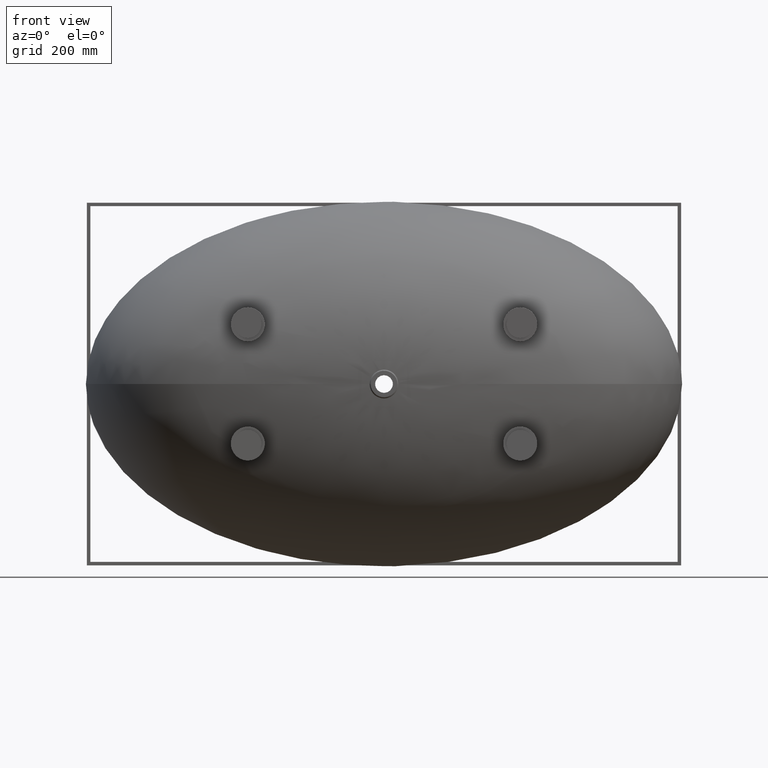
[diagram: clean part render]
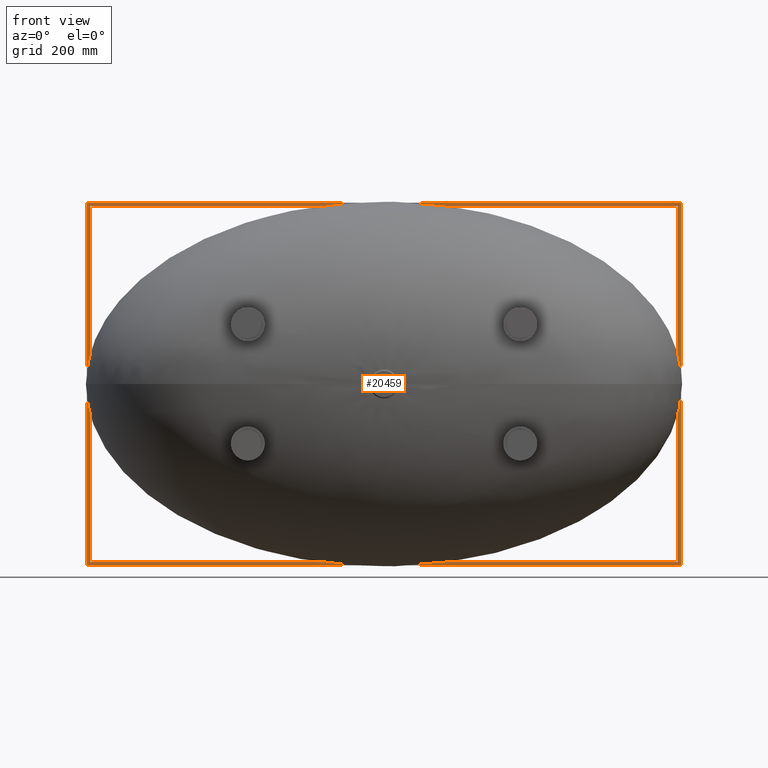
[diagram: same view with one face highlighted and labeled with its STEP entity id]
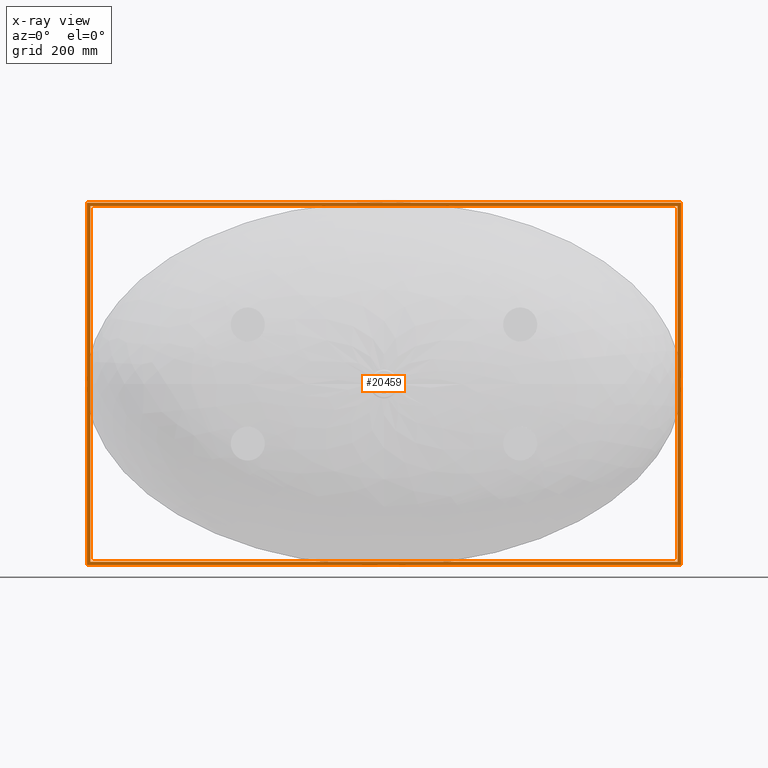
[diagram: x-ray of the same camera — body ghosted, the highlighted face saturated]
A machine part, front view. The second image highlights one B-rep face of the part: STEP entity #20459.
The next image is the same camera in x-ray: the body ghosted, the highlighted face saturated — about 0% of this face is hidden behind the body in this view.
In plain terms, the highlighted planar face has unit normal (-0, -1, -0).
Its self-contained STEP definition (entity closure, byte-faithful):
#3 = VECTOR ( 'NONE', #21532, 1000.000000000000000 ) ;
#475 = DIRECTION ( 'NONE',  ( 0.0000000000000000000, 8.827504507586810600E-028, -1.000000000000000000 ) ) ;
#727 = EDGE_CURVE ( 'NONE', #4575, #16529, #5880, .T. ) ;
#730 = CARTESIAN_POINT ( 'NONE',  ( -872.5000000000001100, -9.999999999999657200, -532.4999999999994300 ) ) ;
#1315 = EDGE_CURVE ( 'NONE', #6338, #5064, #11621, .T. ) ;
#1751 = CARTESIAN_POINT ( 'NONE',  ( 872.5000000000000000, -10.00000000000034300, 532.4999999999994300 ) ) ;
#2247 = ORIENTED_EDGE ( 'NONE', *, *, #10739, .T. ) ;
#2647 = VECTOR ( 'NONE', #17703, 1000.000000000000000 ) ;
#2748 = DIRECTION ( 'NONE',  ( -3.941620205769786900E-016, -1.000000000000000000, -8.828390529674123700E-028 ) ) ;
#3968 = ORIENTED_EDGE ( 'NONE', *, *, #15063, .F. ) ;
#4092 = VECTOR ( 'NONE', #10041, 1000.000000000000000 ) ;
#4373 = PLANE ( 'NONE',  #17604 ) ;
#4376 = FACE_BOUND ( 'NONE', #20444, .T. ) ;
#4575 = VERTEX_POINT ( 'NONE', #10390 ) ;
#4801 = CARTESIAN_POINT ( 'NONE',  ( -862.5000000000001100, -9.999999999999660700, -522.4999999999994300 ) ) ;
#4836 = VECTOR ( 'NONE', #475, 1000.000000000000000 ) ;
#5064 = VERTEX_POINT ( 'NONE', #7307 ) ;
#5143 = LINE ( 'NONE', #17355, #10250 ) ;
#5880 = LINE ( 'NONE', #7419, #4836 ) ;
#6038 = CARTESIAN_POINT ( 'NONE',  ( -3.941620205769787300E-015, -10.00000000000000000, -8.827967302839496300E-027 ) ) ;
#6152 = ORIENTED_EDGE ( 'NONE', *, *, #12839, .T. ) ;
#6160 = CARTESIAN_POINT ( 'NONE',  ( 872.5000000000000000, -10.00000000000034300, -532.4999999999993200 ) ) ;
#6338 = VERTEX_POINT ( 'NONE', #6160 ) ;
#6637 = VECTOR ( 'NONE', #17663, 1000.000000000000000 ) ;
#6672 = VERTEX_POINT ( 'NONE', #17835 ) ;
#7307 = CARTESIAN_POINT ( 'NONE',  ( -872.5000000000001100, -9.999999999999657200, -532.4999999999994300 ) ) ;
#7419 = CARTESIAN_POINT ( 'NONE',  ( 862.5000000000000000, -10.00000000000034100, 522.4999999999994300 ) ) ;
#7448 = LINE ( 'NONE', #12350, #20552 ) ;
#7941 = VERTEX_POINT ( 'NONE', #18283 ) ;
#8768 = EDGE_CURVE ( 'NONE', #16529, #11045, #7448, .T. ) ;
#9386 = DIRECTION ( 'NONE',  ( -0.0000000000000000000, -8.827504507586810600E-028, 1.000000000000000000 ) ) ;
#9503 = CARTESIAN_POINT ( 'NONE',  ( -862.5000000000001100, -9.999999999999660700, 522.4999999999994300 ) ) ;
#9805 = LINE ( 'NONE', #19853, #3 ) ;
#10041 = DIRECTION ( 'NONE',  ( 0.0000000000000000000, 8.828390529674129100E-028, -1.000000000000000000 ) ) ;
#10250 = VECTOR ( 'NONE', #9386, 1000.000000000000000 ) ;
#10366 = DIRECTION ( 'NONE',  ( -1.000000000000000000, 3.941620205769787900E-016, -0.0000000000000000000 ) ) ;
#10390 = CARTESIAN_POINT ( 'NONE',  ( 862.5000000000000000, -10.00000000000034100, 522.4999999999994300 ) ) ;
#10739 = EDGE_CURVE ( 'NONE', #11045, #6672, #5143, .T. ) ;
#11045 = VERTEX_POINT ( 'NONE', #4801 ) ;
#11131 = ORIENTED_EDGE ( 'NONE', *, *, #727, .T. ) ;
#11322 = CARTESIAN_POINT ( 'NONE',  ( -872.5000000000001100, -9.999999999999657200, 532.4999999999994300 ) ) ;
#11621 = LINE ( 'NONE', #730, #21058 ) ;
#11722 = DIRECTION ( 'NONE',  ( -1.000000000000000000, 3.941620205769786900E-016, -6.362309596705767800E-017 ) ) ;
#11799 = VERTEX_POINT ( 'NONE', #20878 ) ;
#12350 = CARTESIAN_POINT ( 'NONE',  ( -862.5000000000001100, -9.999999999999660700, -522.4999999999994300 ) ) ;
#12612 = ORIENTED_EDGE ( 'NONE', *, *, #15605, .F. ) ;
#12839 = EDGE_CURVE ( 'NONE', #6672, #4575, #16908, .T. ) ;
#13233 = LINE ( 'NONE', #1751, #4092 ) ;
#15063 = EDGE_CURVE ( 'NONE', #5064, #7941, #17445, .T. ) ;
#15605 = EDGE_CURVE ( 'NONE', #7941, #11799, #9805, .T. ) ;
#16042 = ORIENTED_EDGE ( 'NONE', *, *, #16610, .F. ) ;
#16529 = VERTEX_POINT ( 'NONE', #20060 ) ;
#16610 = EDGE_CURVE ( 'NONE', #11799, #6338, #13233, .T. ) ;
#16806 = EDGE_LOOP ( 'NONE', ( #3968, #21306, #16042, #12612 ) ) ;
#16908 = LINE ( 'NONE', #9503, #6637 ) ;
#17355 = CARTESIAN_POINT ( 'NONE',  ( -862.5000000000001100, -9.999999999999660700, 522.4999999999994300 ) ) ;
#17445 = LINE ( 'NONE', #11322, #2647 ) ;
#17604 = AXIS2_PLACEMENT_3D ( 'NONE', #6038, #2748, #19388 ) ;
#17663 = DIRECTION ( 'NONE',  ( 1.000000000000000000, -3.941620205769787900E-016, 0.0000000000000000000 ) ) ;
#17703 = DIRECTION ( 'NONE',  ( -0.0000000000000000000, -8.828390529674123700E-028, 1.000000000000000000 ) ) ;
#17835 = CARTESIAN_POINT ( 'NONE',  ( -862.5000000000001100, -9.999999999999660700, 522.4999999999994300 ) ) ;
#18283 = CARTESIAN_POINT ( 'NONE',  ( -872.5000000000001100, -9.999999999999657200, 532.4999999999994300 ) ) ;
#19388 = DIRECTION ( 'NONE',  ( 1.000000000000000000, -3.941620205769786900E-016, 0.0000000000000000000 ) ) ;
#19853 = CARTESIAN_POINT ( 'NONE',  ( -872.5000000000001100, -9.999999999999657200, 532.4999999999994300 ) ) ;
#20060 = CARTESIAN_POINT ( 'NONE',  ( 862.5000000000000000, -10.00000000000034100, -522.4999999999994300 ) ) ;
#20424 = ORIENTED_EDGE ( 'NONE', *, *, #8768, .T. ) ;
#20444 = EDGE_LOOP ( 'NONE', ( #11131, #20424, #2247, #6152 ) ) ;
#20459 = ADVANCED_FACE ( 'NONE', ( #4376, #20524 ), #4373, .T. ) ;
#20524 = FACE_OUTER_BOUND ( 'NONE', #16806, .T. ) ;
#20552 = VECTOR ( 'NONE', #10366, 1000.000000000000000 ) ;
#20878 = CARTESIAN_POINT ( 'NONE',  ( 872.5000000000000000, -10.00000000000034300, 532.4999999999994300 ) ) ;
#21058 = VECTOR ( 'NONE', #11722, 1000.000000000000000 ) ;
#21306 = ORIENTED_EDGE ( 'NONE', *, *, #1315, .F. ) ;
#21532 = DIRECTION ( 'NONE',  ( 1.000000000000000000, -3.941620205769786900E-016, 0.0000000000000000000 ) ) ;